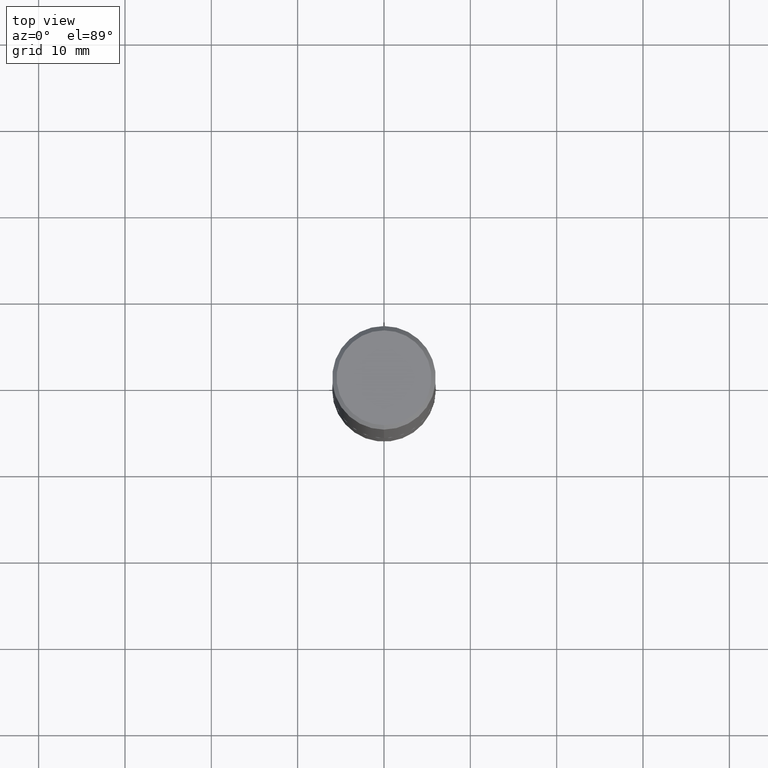
[diagram: clean part render]
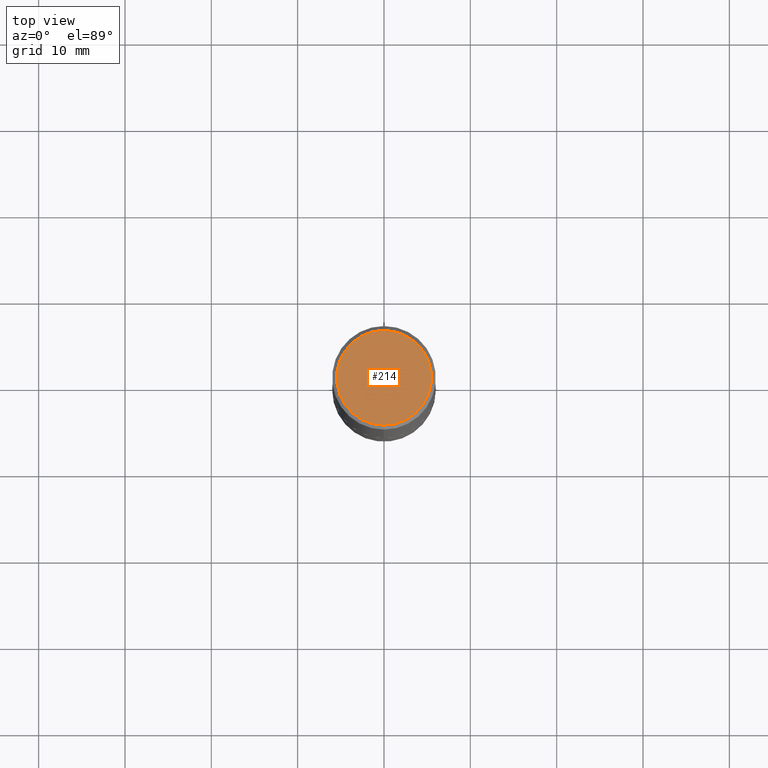
[diagram: same view with one face highlighted and labeled with its STEP entity id]
A machine part, top view. The second image highlights one B-rep face of the part: STEP entity #214.
In plain terms, the highlighted planar face has unit normal (0, -0, -1).
Its self-contained STEP definition (entity closure, byte-faithful):
#28 = PLANE ( 'NONE',  #210 ) ;
#50 = ORIENTED_EDGE ( 'NONE', *, *, #129, .T. ) ;
#53 = DIRECTION ( 'NONE',  ( 6.982962677686265922E-15, 1.000000000000000000, -3.494732472144603016E-15 ) ) ;
#76 = VERTEX_POINT ( 'NONE', #155 ) ;
#93 = CARTESIAN_POINT ( 'NONE',  ( 1.509716530915772690E-15, 0.2162000000000002808, -9.024733938762408486E-16 ) ) ;
#96 = AXIS2_PLACEMENT_3D ( 'NONE', #362, #173, #241 ) ;
#129 = EDGE_CURVE ( 'NONE', #140, #76, #380, .T. ) ;
#140 = VERTEX_POINT ( 'NONE', #243 ) ;
#155 = CARTESIAN_POINT ( 'NONE',  ( -1.551844647095920733E-15, -0.2162000000000002808, 4.617366936805109079E-16 ) ) ;
#161 = CARTESIAN_POINT ( 'NONE',  ( 7.178715118017931868E-45, -1.026837905226585320E-30, -2.938244667971532280E-16 ) ) ;
#173 = DIRECTION ( 'NONE',  ( -2.443198551934710321E-29, 3.494732472144603410E-15, 1.000000000000000000 ) ) ;
#176 = CIRCLE ( 'NONE', #283, 0.2162000000000002808 ) ;
#179 = ORIENTED_EDGE ( 'NONE', *, *, #308, .T. ) ;
#183 = DIRECTION ( 'NONE',  ( 2.443198551934710321E-29, -3.494732472144603016E-15, -1.000000000000000000 ) ) ;
#210 = AXIS2_PLACEMENT_3D ( 'NONE', #93, #183, #53 ) ;
#214 = ADVANCED_FACE ( 'NONE', ( #245 ), #28, .F. ) ;
#225 = DIRECTION ( 'NONE',  ( -2.443198551934710321E-29, 3.494732472144603410E-15, 1.000000000000000000 ) ) ;
#241 = DIRECTION ( 'NONE',  ( -6.982962677686265922E-15, -1.000000000000000000, 3.494732472144603410E-15 ) ) ;
#243 = CARTESIAN_POINT ( 'NONE',  ( 1.579546157692634608E-15, 0.2162000000000002808, -1.049385627274817561E-15 ) ) ;
#245 = FACE_OUTER_BOUND ( 'NONE', #336, .T. ) ;
#280 = DIRECTION ( 'NONE',  ( -6.982962677686265922E-15, -1.000000000000000000, 3.494732472144603410E-15 ) ) ;
#283 = AXIS2_PLACEMENT_3D ( 'NONE', #161, #225, #280 ) ;
#308 = EDGE_CURVE ( 'NONE', #76, #140, #176, .T. ) ;
#336 = EDGE_LOOP ( 'NONE', ( #50, #179 ) ) ;
#362 = CARTESIAN_POINT ( 'NONE',  ( 7.178715118017931868E-45, -1.026837905226585320E-30, -2.938244667971532280E-16 ) ) ;
#380 = CIRCLE ( 'NONE', #96, 0.2162000000000002808 ) ;